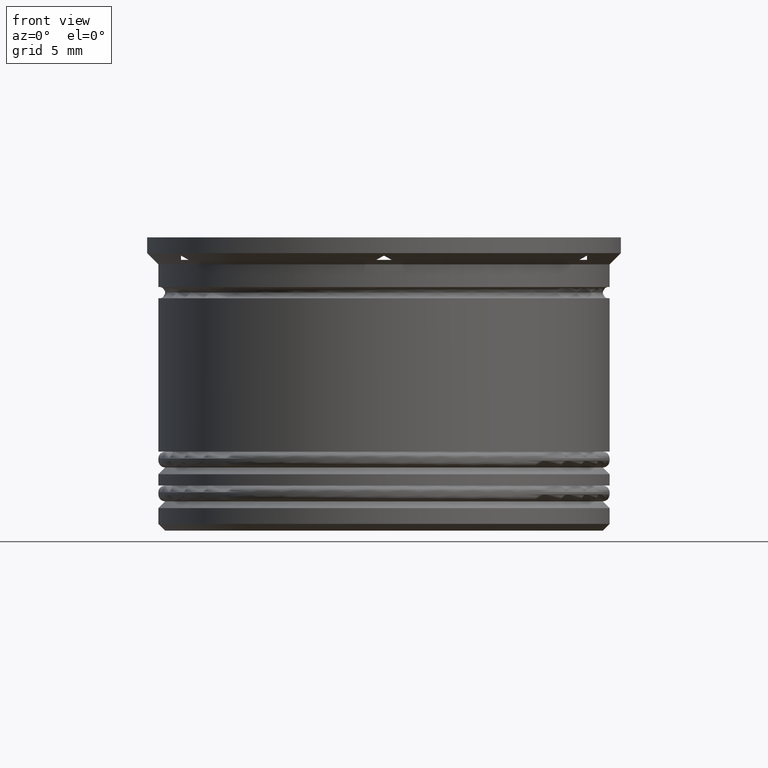
[diagram: clean part render]
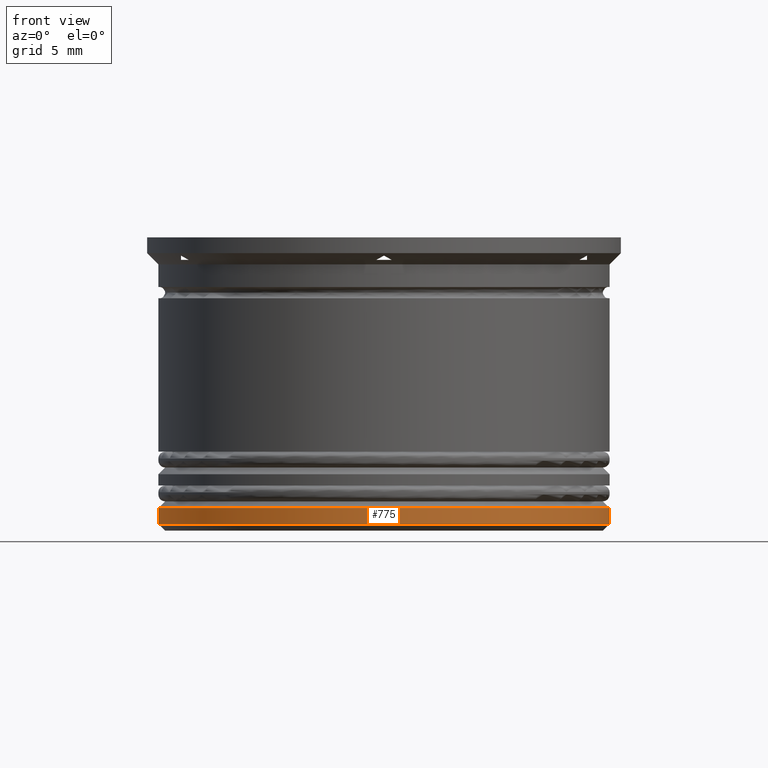
[diagram: same view with one face highlighted and labeled with its STEP entity id]
A machine part, front view. The second image highlights one B-rep face of the part: STEP entity #775.
In plain terms, the highlighted cylindrical surface (partial cylindrical patch) has radius 10 mm, axis along (-0, -0, 1).
Its self-contained STEP definition (entity closure, byte-faithful):
#77 = DIRECTION ( 'NONE',  ( -0.000000000000000000, -0.000000000000000000, 1.000000000000000000 ) ) ;
#158 = DIRECTION ( 'NONE',  ( -1.000000000000000000, 0.000000000000000000, 0.000000000000000000 ) ) ;
#241 = VERTEX_POINT ( 'NONE', #485 ) ;
#317 = DIRECTION ( 'NONE',  ( 0.000000000000000000, 0.000000000000000000, -1.000000000000000000 ) ) ;
#380 = ORIENTED_EDGE ( 'NONE', *, *, #408, .T. ) ;
#408 = EDGE_CURVE ( 'NONE', #430, #241, #1892, .T. ) ;
#430 = VERTEX_POINT ( 'NONE', #1389 ) ;
#447 = EDGE_CURVE ( 'NONE', #795, #582, #907, .T. ) ;
#463 = DIRECTION ( 'NONE',  ( -0.000000000000000000, -0.000000000000000000, 1.000000000000000000 ) ) ;
#485 = CARTESIAN_POINT ( 'NONE',  ( 10.00000000000000178, 0.000000000000000000, -12.00000000000000355 ) ) ;
#582 = VERTEX_POINT ( 'NONE', #1606 ) ;
#583 = EDGE_LOOP ( 'NONE', ( #986, #1100, #380, #827 ) ) ;
#585 = CARTESIAN_POINT ( 'NONE',  ( -10.00000000000000178, 1.224646799147353454E-15, 0.000000000000000000 ) ) ;
#615 = FACE_OUTER_BOUND ( 'NONE', #583, .T. ) ;
#645 = CARTESIAN_POINT ( 'NONE',  ( 0.000000000000000000, 0.000000000000000000, -12.69999999999999396 ) ) ;
#775 = ADVANCED_FACE ( 'NONE', ( #615 ), #1639, .T. ) ;
#795 = VERTEX_POINT ( 'NONE', #2104 ) ;
#827 = ORIENTED_EDGE ( 'NONE', *, *, #1573, .T. ) ;
#907 = LINE ( 'NONE', #585, #1064 ) ;
#961 = DIRECTION ( 'NONE',  ( -0.000000000000000000, -0.000000000000000000, 1.000000000000000000 ) ) ;
#986 = ORIENTED_EDGE ( 'NONE', *, *, #447, .F. ) ;
#1045 = EDGE_CURVE ( 'NONE', #795, #430, #2044, .T. ) ;
#1055 = CARTESIAN_POINT ( 'NONE',  ( 10.00000000000000178, 0.000000000000000000, 0.000000000000000000 ) ) ;
#1064 = VECTOR ( 'NONE', #77, 1000.000000000000000 ) ;
#1100 = ORIENTED_EDGE ( 'NONE', *, *, #1045, .T. ) ;
#1259 = CARTESIAN_POINT ( 'NONE',  ( 0.000000000000000000, 0.000000000000000000, 0.000000000000000000 ) ) ;
#1271 = DIRECTION ( 'NONE',  ( 1.000000000000000000, 0.000000000000000000, 0.000000000000000000 ) ) ;
#1315 = VECTOR ( 'NONE', #1429, 1000.000000000000000 ) ;
#1382 = CIRCLE ( 'NONE', #1758, 10.00000000000000178 ) ;
#1389 = CARTESIAN_POINT ( 'NONE',  ( 10.00000000000000178, 0.000000000000000000, -12.69999999999999396 ) ) ;
#1429 = DIRECTION ( 'NONE',  ( -0.000000000000000000, -0.000000000000000000, 1.000000000000000000 ) ) ;
#1573 = EDGE_CURVE ( 'NONE', #241, #582, #1382, .T. ) ;
#1606 = CARTESIAN_POINT ( 'NONE',  ( -10.00000000000000178, 1.224646799147353454E-15, -12.00000000000000355 ) ) ;
#1639 = CYLINDRICAL_SURFACE ( 'NONE', #2153, 10.00000000000000178 ) ;
#1657 = DIRECTION ( 'NONE',  ( -1.000000000000000000, 0.000000000000000000, 0.000000000000000000 ) ) ;
#1756 = AXIS2_PLACEMENT_3D ( 'NONE', #645, #961, #1657 ) ;
#1758 = AXIS2_PLACEMENT_3D ( 'NONE', #1812, #317, #158 ) ;
#1812 = CARTESIAN_POINT ( 'NONE',  ( 0.000000000000000000, 0.000000000000000000, -12.00000000000000355 ) ) ;
#1892 = LINE ( 'NONE', #1055, #1315 ) ;
#2044 = CIRCLE ( 'NONE', #1756, 10.00000000000000178 ) ;
#2104 = CARTESIAN_POINT ( 'NONE',  ( -10.00000000000000178, 1.224646799147353454E-15, -12.69999999999999396 ) ) ;
#2153 = AXIS2_PLACEMENT_3D ( 'NONE', #1259, #463, #1271 ) ;